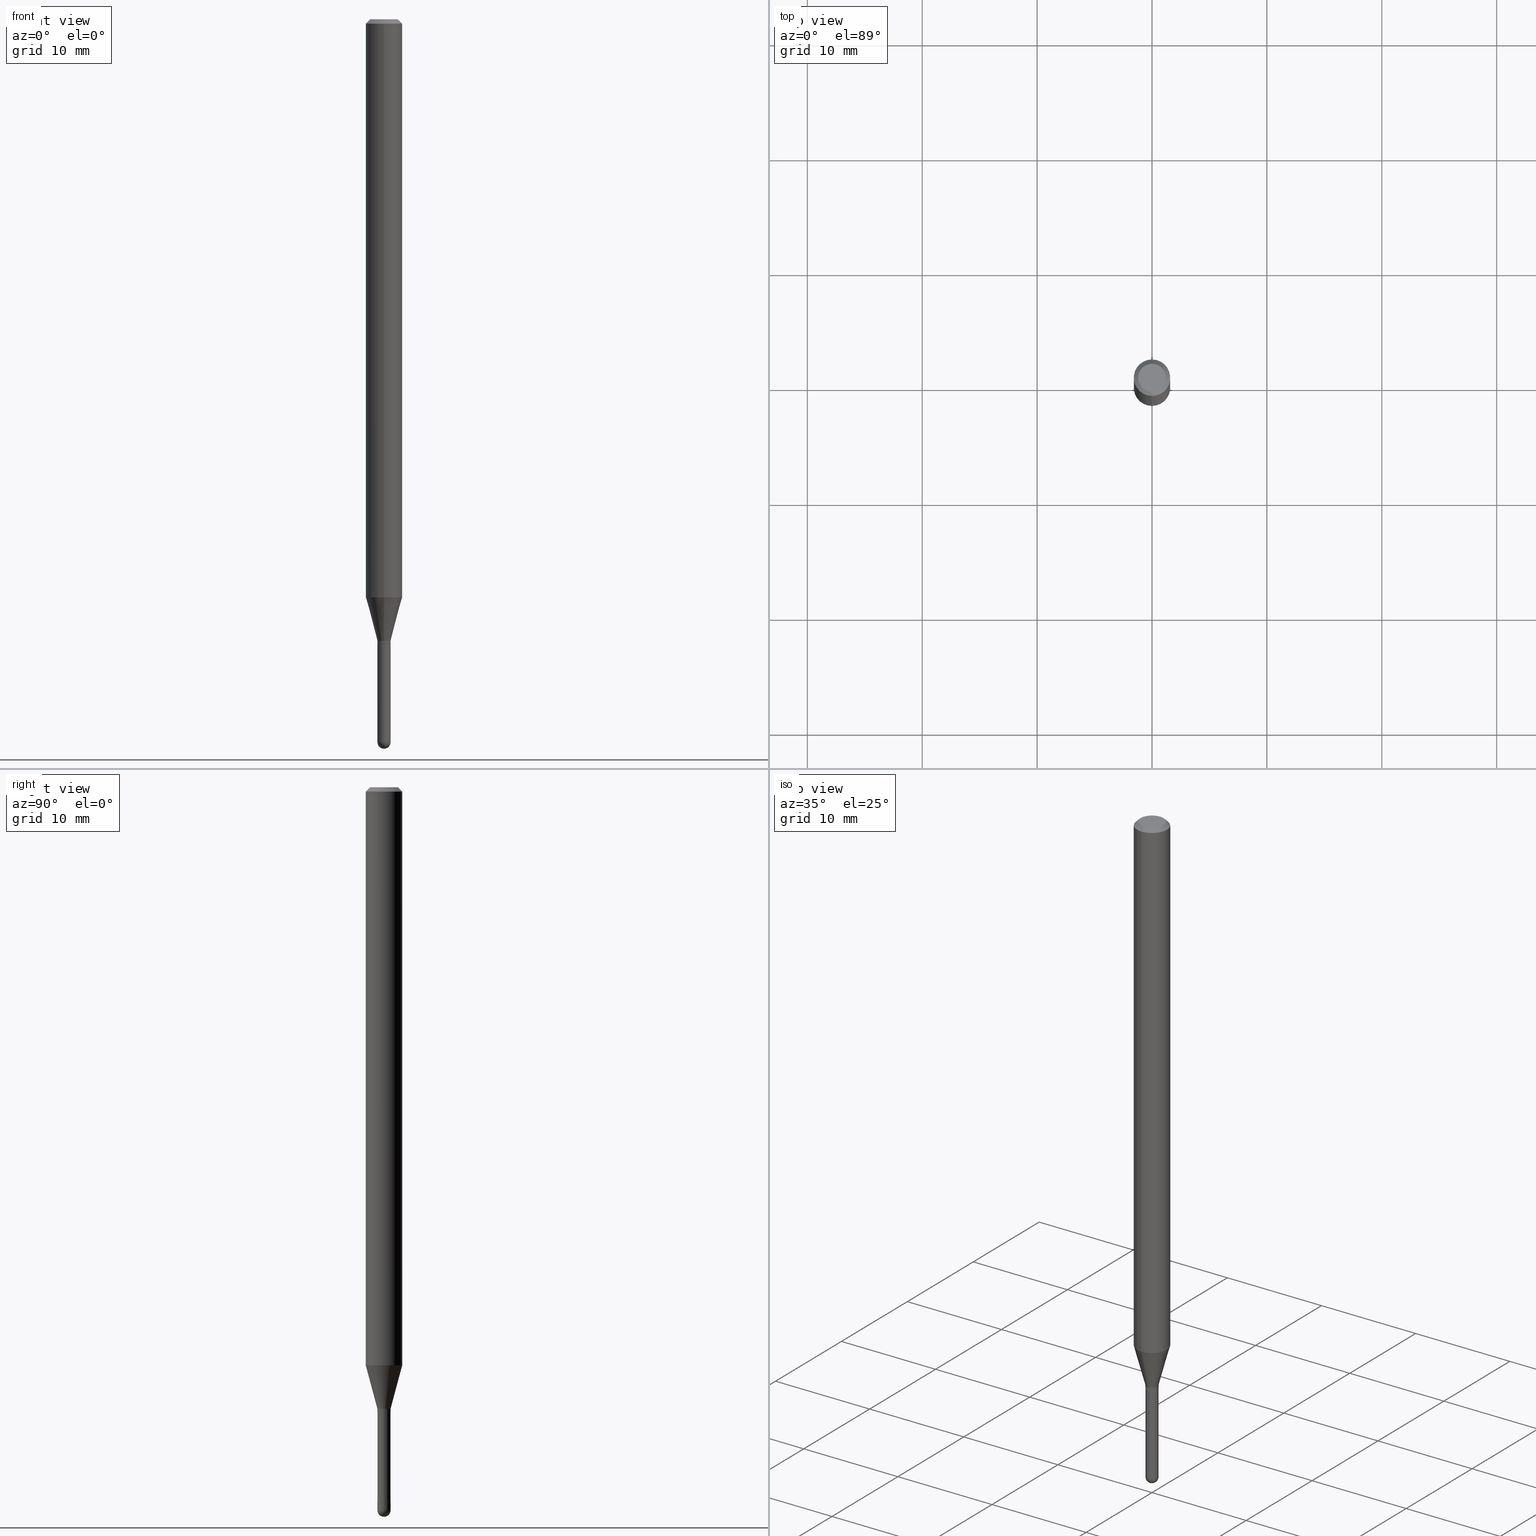
[diagram: canonical four-view strip — front | top / right | iso, engineering-drawing reading convention]
A machine part, canonical four-view strip (front | top / right | iso — engineering-drawing reading convention). The complete STEP part file that produces these views, byte-faithful:
ISO-10303-21;
HEADER;
FILE_DESCRIPTION (( 'STEP AP203' ),
    '1' );
FILE_NAME ('02755.STEP',
    '2024-03-07T21:15:14',
    ( '' ),
    ( '' ),
    'SwSTEP 2.0',
    'SolidWorks 2023',
    '' );
FILE_SCHEMA (( 'CONFIG_CONTROL_DESIGN' ));
ENDSEC;

DATA;
#1 = COORDINATED_UNIVERSAL_TIME_OFFSET ( 5, 0, .BEHIND. ) ;
#2 = CARTESIAN_POINT ( 'NONE',  ( -3.773273898774340269E-16, -0.04749999999999999362, -1.622950516242498850E-16 ) ) ;
#3 = CARTESIAN_POINT ( 'NONE',  ( 5.233200488847550650E-29, -7.471917218121399387E-15, -2.140000000000000124 ) ) ;
#4 = APPROVAL_ROLE ( '' ) ;
#5 = FACE_OUTER_BOUND ( 'NONE', #480, .T. ) ;
#6 = ORIENTED_EDGE ( 'NONE', *, *, #370, .F. ) ;
#7 = AXIS2_PLACEMENT_3D ( 'NONE', #168, #349, #257 ) ;
#8 = VERTEX_POINT ( 'NONE', #442 ) ;
#9 = APPROVAL_STATUS ( 'not_yet_approved' ) ;
#10 = EDGE_CURVE ( 'NONE', #491, #8, #89, .T. ) ;
#11 = ORIENTED_EDGE ( 'NONE', *, *, #189, .F. ) ;
#12 = AXIS2_PLACEMENT_3D ( 'NONE', #313, #161, #122 ) ;
#13 = VERTEX_POINT ( 'NONE', #134 ) ;
#14 = ORIENTED_EDGE ( 'NONE', *, *, #487, .T. ) ;
#15 = ORIENTED_EDGE ( 'NONE', *, *, #287, .F. ) ;
#16 = FACE_OUTER_BOUND ( 'NONE', #406, .T. ) ;
#17 = PRODUCT_DEFINITION_FORMATION_WITH_SPECIFIED_SOURCE ( 'ANY', '', #53, .NOT_KNOWN. ) ;
#18 = APPLICATION_CONTEXT ( 'configuration controlled 3d designs of mechanical parts and assemblies' ) ;
#19 = CARTESIAN_POINT ( 'NONE',  ( 4.364351673553919652E-16, 0.06249999999999995143, -0.01500000000000054588 ) ) ;
#20 = ORIENTED_EDGE ( 'NONE', *, *, #71, .F. ) ;
#21 = CARTESIAN_POINT ( 'NONE',  ( 6.056724843173022591E-29, -8.652900472281975573E-15, -2.477500000000000036 ) ) ;
#22 = CC_DESIGN_PERSON_AND_ORGANIZATION_ASSIGNMENT ( #432, #41, ( #53 ) ) ;
#23 = DIRECTION ( 'NONE',  ( -6.982962677686265922E-15, -1.000000000000000000, 3.483106191921935554E-15 ) ) ;
#24 = ORIENTED_EDGE ( 'NONE', *, *, #463, .F. ) ;
#25 = CYLINDRICAL_SURFACE ( 'NONE', #207, 0.06250000000000000000 ) ;
#26 = DIRECTION ( 'NONE',  ( -6.982962677686265922E-15, -1.000000000000000000, 3.483106191921935554E-15 ) ) ;
#27 = ORIENTED_EDGE ( 'NONE', *, *, #81, .F. ) ;
#28 = DIRECTION ( 'NONE',  ( -2.445468806185136597E-29, 3.491481338843145583E-15, 1.000000000000000000 ) ) ;
#29 = CIRCLE ( 'NONE', #490, 0.06250000000000000000 ) ;
#30 = CARTESIAN_POINT ( 'NONE',  ( 8.024493804947152112E-45, -1.145730104468003590E-30, -3.281436814657294675E-16 ) ) ;
#31 = CARTESIAN_POINT ( 'NONE',  ( 5.231977778452959369E-29, -7.470171443070435373E-15, -2.139500000000000401 ) ) ;
#32 = APPROVAL ( #9, 'UNSPECIFIED' ) ;
#33 = FACE_OUTER_BOUND ( 'NONE', #379, .T. ) ;
#34 = CARTESIAN_POINT ( 'NONE',  ( -0.02249999999999999917, -7.901085425508090322E-15, -2.140000000000000124 ) ) ;
#35 = CONICAL_SURFACE ( 'NONE', #117, 0.06250000000000000000, 0.7853981633974483900 ) ;
#36 = CC_DESIGN_APPROVAL ( #380, ( #446 ) ) ;
#37 = DATE_AND_TIME ( #78, #249 ) ;
#38 = VERTEX_POINT ( 'NONE', #365 ) ;
#39 = DIRECTION ( 'NONE',  ( -2.445468806185136597E-29, 3.491481338843145583E-15, 1.000000000000000000 ) ) ;
#40 = ORIENTED_EDGE ( 'NONE', *, *, #319, .T. ) ;
#41 = PERSON_AND_ORGANIZATION_ROLE ( 'design_owner' ) ;
#42 = DIRECTION ( 'NONE',  ( -4.851104656540964275E-15, -0.7071067811865500152, -0.7071067811865450192 ) ) ;
#43 = CC_DESIGN_PERSON_AND_ORGANIZATION_ASSIGNMENT ( #47, #511, ( #446 ) ) ;
#44 = ORIENTED_EDGE ( 'NONE', *, *, #430, .T. ) ;
#45 =( NAMED_UNIT ( * ) PLANE_ANGLE_UNIT ( ) SI_UNIT ( $, .RADIAN. ) );
#46 = VERTEX_POINT ( 'NONE', #172 ) ;
#47 = PERSON_AND_ORGANIZATION ( #346, #181 ) ;
#48 = CIRCLE ( 'NONE', #375, 0.02249999999999964875 ) ;
#49 = EDGE_CURVE ( 'NONE', #65, #225, #50, .T. ) ;
#50 = LINE ( 'NONE', #210, #96 ) ;
#51 = FACE_OUTER_BOUND ( 'NONE', #91, .T. ) ;
#52 = AXIS2_PLACEMENT_3D ( 'NONE', #144, #499, #492 ) ;
#53 = PRODUCT ( '02755', '02755', '', ( #163 ) ) ;
#54 = UNCERTAINTY_MEASURE_WITH_UNIT (LENGTH_MEASURE( 1.000000000000000082E-05 ), #402, 'distance_accuracy_value', 'NONE');
#55 = ORIENTED_EDGE ( 'NONE', *, *, #463, .T. ) ;
#56 = EDGE_LOOP ( 'NONE', ( #191, #97 ) ) ;
#57 = DIRECTION ( 'NONE',  ( -2.445468806185136597E-29, 3.491481338843145583E-15, 1.000000000000000000 ) ) ;
#58 = LINE ( 'NONE', #220, #240 ) ;
#59 = ORIENTED_EDGE ( 'NONE', *, *, #95, .F. ) ;
#60 = ADVANCED_FACE ( 'NONE', ( #51 ), #366, .F. ) ;
#61 = AXIS2_PLACEMENT_3D ( 'NONE', #115, #301, #344 ) ;
#62 = DIRECTION ( 'NONE',  ( -6.982962677686266711E-15, -1.000000000000000000, 0.000000000000000000 ) ) ;
#63 = VECTOR ( 'NONE', #502, 39.37007874015748143 ) ;
#64 = DIRECTION ( 'NONE',  ( 1.000000000000000000, -6.982962677686269866E-15, 0.000000000000000000 ) ) ;
#65 = VERTEX_POINT ( 'NONE', #94 ) ;
#66 = CC_DESIGN_DATE_AND_TIME_ASSIGNMENT ( #284, #87, ( #446 ) ) ;
#67 = FACE_OUTER_BOUND ( 'NONE', #434, .T. ) ;
#68 = DIRECTION ( 'NONE',  ( -6.982962677686266711E-15, -1.000000000000000000, 3.491550101925886841E-15 ) ) ;
#69 = VERTEX_POINT ( 'NONE', #447 ) ;
#70 = CARTESIAN_POINT ( 'NONE',  ( 5.233303245236192586E-29, -7.471770065124331886E-15, -2.140000000000000124 ) ) ;
#71 = EDGE_CURVE ( 'NONE', #234, #69, #450, .T. ) ;
#72 = DIRECTION ( 'NONE',  ( 4.937700262164548042E-15, 0.7071067811865451302, -0.7071067811865499042 ) ) ;
#73 = DIRECTION ( 'NONE',  ( -6.982962677686265922E-15, -1.000000000000000000, 0.000000000000000000 ) ) ;
#74 = VECTOR ( 'NONE', #414, 39.37007874015748143 ) ;
#75 = AXIS2_PLACEMENT_3D ( 'NONE', #183, #336, #493 ) ;
#76 = DIRECTION ( 'NONE',  ( -2.445420789181098238E-29, 3.491550101925886841E-15, 1.000000000000000000 ) ) ;
#77 = SPHERICAL_SURFACE ( 'NONE', #369, 0.02249999999999977712 ) ;
#78 = CALENDAR_DATE ( 2024, 7, 3 ) ;
#79 = DIRECTION ( 'NONE',  ( -1.000000000000000000, 6.982962677686265922E-15, -4.883557194083111780E-29 ) ) ;
#80 = COORDINATED_UNIVERSAL_TIME_OFFSET ( 5, 0, .BEHIND. ) ;
#81 = EDGE_CURVE ( 'NONE', #65, #8, #288, .T. ) ;
#82 = DIRECTION ( 'NONE',  ( -2.445420789181098238E-29, 3.491550101925886841E-15, 1.000000000000000000 ) ) ;
#83 = DATE_AND_TIME ( #435, #261 ) ;
#84 = DIRECTION ( 'NONE',  ( -2.445420789181098238E-29, 3.491550101925886841E-15, 1.000000000000000000 ) ) ;
#85 = CC_DESIGN_DATE_AND_TIME_ASSIGNMENT ( #37, #90, ( #422 ) ) ;
#86 = ORIENTED_EDGE ( 'NONE', *, *, #189, .T. ) ;
#87 = DATE_TIME_ROLE ( 'classification_date' ) ;
#88 = ADVANCED_FACE ( 'NONE', ( #338 ), #484, .T. ) ;
#89 = LINE ( 'NONE', #248, #342 ) ;
#90 = DATE_TIME_ROLE ( 'creation_date' ) ;
#91 = EDGE_LOOP ( 'NONE', ( #59, #417 ) ) ;
#92 = AXIS2_PLACEMENT_3D ( 'NONE', #386, #57, #424 ) ;
#93 = LOCAL_TIME ( 16, 15, 14.00000000000000000, #478 ) ;
#94 = CARTESIAN_POINT ( 'NONE',  ( 1.598721155460756608E-16, 0.02249999999999264741, -2.139500000000000401 ) ) ;
#95 = EDGE_CURVE ( 'NONE', #491, #46, #260, .T. ) ;
#96 = VECTOR ( 'NONE', #173, 39.37007874015748143 ) ;
#97 = ORIENTED_EDGE ( 'NONE', *, *, #408, .T. ) ;
#98 = AXIS2_PLACEMENT_3D ( 'NONE', #433, #82, #239 ) ;
#99 = ORIENTED_EDGE ( 'NONE', *, *, #227, .T. ) ;
#100 = DIRECTION ( 'NONE',  ( -2.445420789181098238E-29, 3.491550101925886841E-15, 1.000000000000000000 ) ) ;
#101 = CARTESIAN_POINT ( 'NONE',  ( 8.024493804947152112E-45, -1.145730104468003590E-30, -3.281436814657294675E-16 ) ) ;
#102 = ORIENTED_EDGE ( 'NONE', *, *, #400, .F. ) ;
#103 = DIRECTION ( 'NONE',  ( -2.445420789181098238E-29, 3.491550101925886841E-15, 1.000000000000000000 ) ) ;
#104 = CC_DESIGN_PERSON_AND_ORGANIZATION_ASSIGNMENT ( #393, #160, ( #17 ) ) ;
#105 = CARTESIAN_POINT ( 'NONE',  ( 3.668131183771727494E-31, -5.237325152888944203E-17, -0.01500000000000032904 ) ) ;
#106 = ORIENTED_EDGE ( 'NONE', *, *, #167, .T. ) ;
#107 = AXIS2_PLACEMENT_3D ( 'NONE', #259, #464, #334 ) ;
#108 = DIRECTION ( 'NONE',  ( -6.982962677686265133E-15, -1.000000000000000000, 0.000000000000000000 ) ) ;
#109 = LINE ( 'NONE', #265, #63 ) ;
#110 = VERTEX_POINT ( 'NONE', #311 ) ;
#111 = ADVANCED_FACE ( 'NONE', ( #269 ), #294, .T. ) ;
#112 = DIRECTION ( 'NONE',  ( 1.000000000000000000, -6.982962677686265922E-15, 4.883557194083112340E-29 ) ) ;
#113 = LINE ( 'NONE', #461, #485 ) ;
#114 = PLANE ( 'NONE',  #179 ) ;
#115 = CARTESIAN_POINT ( 'NONE',  ( 4.843688895711374227E-29, -6.915776021999746285E-15, -1.980717967697243731 ) ) ;
#116 = DIRECTION ( 'NONE',  ( -2.445420789181098238E-29, 3.491550101925886841E-15, 1.000000000000000000 ) ) ;
#117 = AXIS2_PLACEMENT_3D ( 'NONE', #267, #297, #299 ) ;
#118 = AXIS2_PLACEMENT_3D ( 'NONE', #243, #171, #272 ) ;
#119 = DATE_AND_TIME ( #320, #354 ) ;
#120 = DIRECTION ( 'NONE',  ( 6.982962677686265922E-15, 1.000000000000000000, 0.000000000000000000 ) ) ;
#121 = ADVANCED_FACE ( 'NONE', ( #381 ), #418, .T. ) ;
#122 = DIRECTION ( 'NONE',  ( 6.982962677686265922E-15, 1.000000000000000000, -3.491550101925886841E-15 ) ) ;
#123 = APPROVAL_STATUS ( 'not_yet_approved' ) ;
#124 = APPROVAL ( #236, 'UNSPECIFIED' ) ;
#125 = CARTESIAN_POINT ( 'NONE',  ( -4.287811248607203282E-16, -0.06250000000000005551, -0.01500000000000011047 ) ) ;
#126 = AXIS2_PLACEMENT_3D ( 'NONE', #21, #112, #412 ) ;
#127 = VECTOR ( 'NONE', #84, 39.37007874015748143 ) ;
#128 = ORIENTED_EDGE ( 'NONE', *, *, #327, .F. ) ;
#129 = APPLICATION_PROTOCOL_DEFINITION ( 'international standard', 'config_control_design', 1994, #469 ) ;
#130 = ADVANCED_FACE ( 'NONE', ( #16 ), #35, .T. ) ;
#131 = EDGE_LOOP ( 'NONE', ( #440, #255, #302, #170 ) ) ;
#132 =( NAMED_UNIT ( * ) SI_UNIT ( $, .STERADIAN. ) SOLID_ANGLE_UNIT ( ) );
#133 = VERTEX_POINT ( 'NONE', #226 ) ;
#134 = CARTESIAN_POINT ( 'NONE',  ( 4.440892098501114269E-16, 0.06249999999999995143, -0.01500000000000054588 ) ) ;
#135 = AXIS2_PLACEMENT_3D ( 'NONE', #452, #100, #73 ) ;
#136 = CC_DESIGN_APPROVAL ( #32, ( #422 ) ) ;
#137 = ADVANCED_FACE ( 'NONE', ( #303 ), #114, .F. ) ;
#138 = CIRCLE ( 'NONE', #426, 0.02249999999999999917 ) ;
#139 = ORIENTED_EDGE ( 'NONE', *, *, #279, .F. ) ;
#140 = CIRCLE ( 'NONE', #305, 0.02199999999999999872 ) ;
#141 = DIRECTION ( 'NONE',  ( -1.807323732225331717E-15, -0.2588190451025184080, 0.9659258262890689783 ) ) ;
#142 = EDGE_CURVE ( 'NONE', #371, #143, #230, .T. ) ;
#143 = VERTEX_POINT ( 'NONE', #256 ) ;
#144 = CARTESIAN_POINT ( 'NONE',  ( 0.000000000000000000, 0.000000000000000000, 0.000000000000000000 ) ) ;
#145 = CARTESIAN_POINT ( 'NONE',  ( 4.843688895711374227E-29, -6.915776021999746285E-15, -1.980717967697243731 ) ) ;
#146 = EDGE_LOOP ( 'NONE', ( #229, #285, #277, #360 ) ) ;
#147 = DIRECTION ( 'NONE',  ( -2.445468806185136877E-29, 3.491481338843145188E-15, 1.000000000000000000 ) ) ;
#148 = ORIENTED_EDGE ( 'NONE', *, *, #287, .T. ) ;
#149 = CIRCLE ( 'NONE', #436, 0.02249999999999999570 ) ;
#150 = CIRCLE ( 'NONE', #376, 0.02249999999999999570 ) ;
#151 = LINE ( 'NONE', #196, #74 ) ;
#152 = DIRECTION ( 'NONE',  ( 1.000000000000000000, -6.982962677686269866E-15, 0.000000000000000000 ) ) ;
#153 = CARTESIAN_POINT ( 'NONE',  ( 5.231977778452959369E-29, -7.470171443070435373E-15, -2.139500000000000401 ) ) ;
#154 = DIRECTION ( 'NONE',  ( -2.445420789181098238E-29, 3.491550101925886841E-15, 1.000000000000000000 ) ) ;
#155 = PLANE ( 'NONE',  #12 ) ;
#156 = DIRECTION ( 'NONE',  ( -2.445468806185136597E-29, 3.491481338843145583E-15, 1.000000000000000000 ) ) ;
#157 = CARTESIAN_POINT ( 'NONE',  ( 5.233303245236192586E-29, -7.471770065124331886E-15, -2.140000000000000124 ) ) ;
#158 = EDGE_CURVE ( 'NONE', #397, #242, #151, .T. ) ;
#159 = CC_DESIGN_APPROVAL ( #124, ( #17 ) ) ;
#160 = PERSON_AND_ORGANIZATION_ROLE ( 'creator' ) ;
#161 = DIRECTION ( 'NONE',  ( 2.445420789181097678E-29, -3.491550101925886841E-15, -1.000000000000000000 ) ) ;
#162 = CC_DESIGN_PERSON_AND_ORGANIZATION_ASSIGNMENT ( #361, #166, ( #422 ) ) ;
#163 = MECHANICAL_CONTEXT ( 'NONE', #469, 'mechanical' ) ;
#164 = CARTESIAN_POINT ( 'NONE',  ( -1.571166602479404241E-16, -0.02249999999999992284, 7.855987729333218473E-17 ) ) ;
#165 = ORIENTED_EDGE ( 'NONE', *, *, #158, .F. ) ;
#166 = PERSON_AND_ORGANIZATION_ROLE ( 'creator' ) ;
#167 = EDGE_CURVE ( 'NONE', #234, #110, #192, .T. ) ;
#168 = CARTESIAN_POINT ( 'NONE',  ( 5.208746280955738477E-29, -7.437001717102136463E-15, -2.129999999999999449 ) ) ;
#169 = CIRCLE ( 'NONE', #75, 0.02249999999999964875 ) ;
#170 = ORIENTED_EDGE ( 'NONE', *, *, #487, .F. ) ;
#171 = DIRECTION ( 'NONE',  ( 0.000000000000000000, 0.000000000000000000, 1.000000000000000000 ) ) ;
#172 = CARTESIAN_POINT ( 'NONE',  ( 1.580957587066752608E-16, 0.02199999999999252900, -2.139999999999999680 ) ) ;
#173 = DIRECTION ( 'NONE',  ( -2.445420789181098238E-29, 3.491550101925886841E-15, 1.000000000000000000 ) ) ;
#174 = ADVANCED_FACE ( 'NONE', ( #67 ), #194, .T. ) ;
#175 = AXIS2_PLACEMENT_3D ( 'NONE', #252, #212, #458 ) ;
#176 = CIRCLE ( 'NONE', #295, 0.06250000000000000000 ) ;
#177 = DIMENSIONAL_EXPONENTS ( 1.000000000000000000, 0.000000000000000000, 0.000000000000000000, 0.000000000000000000, 0.000000000000000000, 0.000000000000000000, 0.000000000000000000 ) ;
#178 = EDGE_CURVE ( 'NONE', #451, #38, #232, .T. ) ;
#179 = AXIS2_PLACEMENT_3D ( 'NONE', #455, #223, #466 ) ;
#180 = ORIENTED_EDGE ( 'NONE', *, *, #10, .T. ) ;
#181 = ORGANIZATION ( 'UNSPECIFIED', 'UNSPECIFIED', '' ) ;
#182 = DIRECTION ( 'NONE',  ( -6.982962677686265922E-15, -1.000000000000000000, 3.491550101925886447E-15 ) ) ;
#183 = CARTESIAN_POINT ( 'NONE',  ( 5.208746280955738477E-29, -7.437001717102136463E-15, -2.129999999999999449 ) ) ;
#184 = ORIENTED_EDGE ( 'NONE', *, *, #471, .F. ) ;
#185 = DIRECTION ( 'NONE',  ( 1.000000000000000000, -6.982962677686269077E-15, 0.000000000000000000 ) ) ;
#186 = LINE ( 'NONE', #19, #364 ) ;
#187 = ORIENTED_EDGE ( 'NONE', *, *, #279, .T. ) ;
#188 = CARTESIAN_POINT ( 'NONE',  ( 0.000000000000000000, 0.000000000000000000, 0.000000000000000000 ) ) ;
#189 = EDGE_CURVE ( 'NONE', #143, #242, #138, .T. ) ;
#190 = CARTESIAN_POINT ( 'NONE',  ( -0.02249999999999999570, -7.901085425508090322E-15, -2.477500000000000036 ) ) ;
#191 = ORIENTED_EDGE ( 'NONE', *, *, #215, .T. ) ;
#192 = CIRCLE ( 'NONE', #126, 0.02249999999999977712 ) ;
#193 = CIRCLE ( 'NONE', #479, 0.02249999999999999570 ) ;
#194 = CYLINDRICAL_SURFACE ( 'NONE', #92, 0.02249999999999999917 ) ;
#195 = CYLINDRICAL_SURFACE ( 'NONE', #437, 0.02249999999999992284 ) ;
#196 = CARTESIAN_POINT ( 'NONE',  ( -0.02249999999999999917, 1.598721155460225359E-16, -1.106760395307353780E-30 ) ) ;
#197 = LINE ( 'NONE', #347, #501 ) ;
#198 = ORIENTED_EDGE ( 'NONE', *, *, #253, .F. ) ;
#199 = CARTESIAN_POINT ( 'NONE',  ( 6.058648967323676636E-29, -8.650145016983893338E-15, -2.477500000000000036 ) ) ;
#200 = CARTESIAN_POINT ( 'NONE',  ( 5.208746280955738477E-29, -7.437001717102136463E-15, -2.129999999999999449 ) ) ;
#201 = LINE ( 'NONE', #125, #219 ) ;
#202 = ADVANCED_FACE ( 'NONE', ( #345 ), #304, .T. ) ;
#203 = EDGE_LOOP ( 'NONE', ( #246, #328, #40, #258 ) ) ;
#204 = SHAPE_DEFINITION_REPRESENTATION ( #425, #377 ) ;
#205 = DIRECTION ( 'NONE',  ( 6.982962677686265922E-15, 1.000000000000000000, 0.000000000000000000 ) ) ;
#206 = ORIENTED_EDGE ( 'NONE', *, *, #400, .T. ) ;
#207 = AXIS2_PLACEMENT_3D ( 'NONE', #188, #390, #182 ) ;
#208 = AXIS2_PLACEMENT_3D ( 'NONE', #105, #231, #389 ) ;
#209 = ORIENTED_EDGE ( 'NONE', *, *, #142, .F. ) ;
#210 = CARTESIAN_POINT ( 'NONE',  ( 1.598721155460219689E-16, 0.02249999999999992284, -7.855987729333218473E-17 ) ) ;
#211 = ADVANCED_FACE ( 'NONE', ( #495 ), #25, .T. ) ;
#212 = DIRECTION ( 'NONE',  ( -1.000000000000000000, 7.105427357601001070E-15, -4.926315508542082329E-29 ) ) ;
#213 = CIRCLE ( 'NONE', #500, 0.02249999999999999570 ) ;
#214 = CONICAL_SURFACE ( 'NONE', #7, 0.02249999999999964875, 0.2617993877991505181 ) ;
#215 = EDGE_CURVE ( 'NONE', #133, #273, #488, .T. ) ;
#216 = ORIENTED_EDGE ( 'NONE', *, *, #95, .T. ) ;
#217 = ORIENTED_EDGE ( 'NONE', *, *, #373, .F. ) ;
#218 = CARTESIAN_POINT ( 'NONE',  ( 5.233200488847549529E-29, -7.471917218121397809E-15, -2.139999999999999680 ) ) ;
#219 = VECTOR ( 'NONE', #42, 39.37007874015748143 ) ;
#220 = CARTESIAN_POINT ( 'NONE',  ( 1.563194018672743185E-16, 0.02199999999999252900, -2.139999999999999680 ) ) ;
#221 = ORIENTED_EDGE ( 'NONE', *, *, #411, .F. ) ;
#222 =( GEOMETRIC_REPRESENTATION_CONTEXT ( 3 ) GLOBAL_UNCERTAINTY_ASSIGNED_CONTEXT ( ( #54 ) ) GLOBAL_UNIT_ASSIGNED_CONTEXT ( ( #402, #45, #132 ) ) REPRESENTATION_CONTEXT ( 'NONE', 'WORKASPACE' ) );
#223 = DIRECTION ( 'NONE',  ( 2.438088387897960049E-29, -3.491481338843145188E-15, -1.000000000000000000 ) ) ;
#224 = DIRECTION ( 'NONE',  ( 1.839019923739601893E-15, 0.2588190451025252359, 0.9659258262890670910 ) ) ;
#225 = VERTEX_POINT ( 'NONE', #472 ) ;
#226 = CARTESIAN_POINT ( 'NONE',  ( 3.840629472727447874E-16, 0.04749999999999999362, -4.939923113072091241E-16 ) ) ;
#227 = EDGE_CURVE ( 'NONE', #451, #225, #48, .T. ) ;
#228 = DIRECTION ( 'NONE',  ( 5.024295867790934632E-15, 0.7071067811869542474, 0.7071067811861405650 ) ) ;
#229 = ORIENTED_EDGE ( 'NONE', *, *, #356, .T. ) ;
#230 = LINE ( 'NONE', #308, #363 ) ;
#231 = DIRECTION ( 'NONE',  ( 2.445420789181098238E-29, -3.491550101925886841E-15, -1.000000000000000000 ) ) ;
#232 = LINE ( 'NONE', #374, #368 ) ;
#233 = CARTESIAN_POINT ( 'NONE',  ( -4.364351673553912750E-16, -0.06250000000000005551, -0.01500000000000011047 ) ) ;
#234 = VERTEX_POINT ( 'NONE', #317 ) ;
#235 = DIRECTION ( 'NONE',  ( 1.000000000000000000, -6.982962677686269077E-15, 0.000000000000000000 ) ) ;
#236 = APPROVAL_STATUS ( 'not_yet_approved' ) ;
#237 = CYLINDRICAL_SURFACE ( 'NONE', #445, 0.06250000000000000000 ) ;
#238 = LENGTH_MEASURE_WITH_UNIT ( LENGTH_MEASURE( 0.02539999999999999897 ), #428 );
#239 = DIRECTION ( 'NONE',  ( -6.982962677686265133E-15, -1.000000000000000000, 3.491550101925886841E-15 ) ) ;
#240 = VECTOR ( 'NONE', #228, 39.37007874015748854 ) ;
#241 = MANIFOLD_SOLID_BREP ( 'Body-Move/Copy2[2]', #280 ) ;
#242 = VERTEX_POINT ( 'NONE', #34 ) ;
#243 = CARTESIAN_POINT ( 'NONE',  ( 0.000000000000000000, 0.000000000000000000, 0.000000000000000000 ) ) ;
#244 = DIRECTION ( 'NONE',  ( -2.445468806185136597E-29, 3.491481338843145583E-15, 1.000000000000000000 ) ) ;
#245 = CC_DESIGN_PERSON_AND_ORGANIZATION_ASSIGNMENT ( #441, #351, ( #17 ) ) ;
#246 = ORIENTED_EDGE ( 'NONE', *, *, #49, .F. ) ;
#247 = COORDINATED_UNIVERSAL_TIME_OFFSET ( 5, 0, .BEHIND. ) ;
#248 = CARTESIAN_POINT ( 'NONE',  ( -1.536251789090455247E-16, -0.02200000000000746844, -2.139999999999999680 ) ) ;
#249 = LOCAL_TIME ( 16, 15, 14.00000000000000000, #326 ) ;
#250 = ADVANCED_FACE ( 'NONE', ( #33 ), #237, .T. ) ;
#251 = MANIFOLD_SOLID_BREP ( 'Body-Move/Copy2[1]', #409 ) ;
#252 = CARTESIAN_POINT ( 'NONE',  ( 6.056724843173022591E-29, -8.652900472281975573E-15, -2.477500000000000036 ) ) ;
#253 = EDGE_CURVE ( 'NONE', #273, #407, #201, .T. ) ;
#254 = AXIS2_PLACEMENT_3D ( 'NONE', #101, #504, #68 ) ;
#255 = ORIENTED_EDGE ( 'NONE', *, *, #253, .T. ) ;
#256 = CARTESIAN_POINT ( 'NONE',  ( 0.02249999999999999917, -7.628886725372273518E-15, -2.140000000000000124 ) ) ;
#257 = DIRECTION ( 'NONE',  ( -6.982962677686266711E-15, -1.000000000000000000, 0.000000000000000000 ) ) ;
#258 = ORIENTED_EDGE ( 'NONE', *, *, #496, .F. ) ;
#259 = CARTESIAN_POINT ( 'NONE',  ( 5.233200488847549529E-29, -7.471917218121397809E-15, -2.139999999999999680 ) ) ;
#260 = CIRCLE ( 'NONE', #107, 0.02199999999999999872 ) ;
#261 = LOCAL_TIME ( 16, 15, 14.00000000000000000, #247 ) ;
#262 = EDGE_LOOP ( 'NONE', ( #216, #449, #340, #307 ) ) ;
#263 = ADVANCED_FACE ( 'NONE', ( #355 ), #429, .T. ) ;
#264 = CARTESIAN_POINT ( 'NONE',  ( 5.208746280955738477E-29, -7.437001717102136463E-15, -2.129999999999999449 ) ) ;
#265 = CARTESIAN_POINT ( 'NONE',  ( -4.364351673553916201E-16, -0.06250000000000000000, 2.182218813703679029E-16 ) ) ;
#266 = ORIENTED_EDGE ( 'NONE', *, *, #178, .F. ) ;
#267 = CARTESIAN_POINT ( 'NONE',  ( 3.668131183771727494E-31, -5.237325152888944203E-17, -0.01500000000000032904 ) ) ;
#268 = CARTESIAN_POINT ( 'NONE',  ( 3.668131183771727494E-31, -5.237325152888944203E-17, -0.01500000000000032904 ) ) ;
#269 = FACE_OUTER_BOUND ( 'NONE', #337, .T. ) ;
#270 = ADVANCED_FACE ( 'NONE', ( #392 ), #155, .F. ) ;
#271 = CARTESIAN_POINT ( 'NONE',  ( -1.536251789090455247E-16, -0.02200000000000746844, -2.139999999999999680 ) ) ;
#272 = DIRECTION ( 'NONE',  ( 1.000000000000000000, 0.000000000000000000, 0.000000000000000000 ) ) ;
#273 = VERTEX_POINT ( 'NONE', #2 ) ;
#274 = DIRECTION ( 'NONE',  ( -2.445468806185136597E-29, 3.491481338843145583E-15, 1.000000000000000000 ) ) ;
#275 = APPLICATION_PROTOCOL_DEFINITION ( 'international standard', 'config_control_design', 1994, #18 ) ;
#276 = CYLINDRICAL_SURFACE ( 'NONE', #98, 0.02249999999999992284 ) ;
#277 = ORIENTED_EDGE ( 'NONE', *, *, #227, .F. ) ;
#278 = APPROVAL_ROLE ( '' ) ;
#279 = EDGE_CURVE ( 'NONE', #110, #397, #149, .T. ) ;
#280 = CLOSED_SHELL ( 'NONE', ( #310, #202, #505, #250, #335, #88, #211, #130, #270, #60, #111, #383 ) ) ;
#281 = DIRECTION ( 'NONE',  ( -1.000000000000000000, 6.982962677686265922E-15, -4.883557194083111780E-29 ) ) ;
#282 = CIRCLE ( 'NONE', #61, 0.06250000000000000000 ) ;
#283 = ORIENTED_EDGE ( 'NONE', *, *, #471, .T. ) ;
#284 = DATE_AND_TIME ( #473, #353 ) ;
#285 = ORIENTED_EDGE ( 'NONE', *, *, #49, .T. ) ;
#286 = DATE_AND_TIME ( #481, #93 ) ;
#287 = EDGE_CURVE ( 'NONE', #371, #110, #213, .T. ) ;
#288 = CIRCLE ( 'NONE', #352, 0.02250000000000019693 ) ;
#289 = APPROVAL_PERSON_ORGANIZATION ( #314, #32, #4 ) ;
#290 = DIRECTION ( 'NONE',  ( -2.445420789181097678E-29, 3.491550101925886841E-15, 1.000000000000000000 ) ) ;
#291 = ADVANCED_FACE ( 'NONE', ( #438 ), #77, .T. ) ;
#292 = EDGE_LOOP ( 'NONE', ( #165, #333, #494, #486, #128 ) ) ;
#293 = PRODUCT_RELATED_PRODUCT_CATEGORY ( 'detail', '', ( #53 ) ) ;
#294 = CONICAL_SURFACE ( 'NONE', #509, 0.02199999999999999872, 0.7853981633980202659 ) ;
#295 = AXIS2_PLACEMENT_3D ( 'NONE', #453, #312, #26 ) ;
#296 = EDGE_LOOP ( 'NONE', ( #385, #401, #55, #184 ) ) ;
#297 = DIRECTION ( 'NONE',  ( 2.445420789181098238E-29, -3.491550101925886841E-15, -1.000000000000000000 ) ) ;
#298 = ORIENTED_EDGE ( 'NONE', *, *, #496, .T. ) ;
#299 = DIRECTION ( 'NONE',  ( 6.982962677686265922E-15, 1.000000000000000000, -3.483106191921935554E-15 ) ) ;
#300 = EDGE_CURVE ( 'NONE', #46, #491, #140, .T. ) ;
#301 = DIRECTION ( 'NONE',  ( -2.445420789181098238E-29, 3.491550101925886841E-15, 1.000000000000000000 ) ) ;
#302 = ORIENTED_EDGE ( 'NONE', *, *, #373, .T. ) ;
#303 = FACE_OUTER_BOUND ( 'NONE', #454, .T. ) ;
#304 = CONICAL_SURFACE ( 'NONE', #135, 0.02199999999999999872, 0.7853981633980202659 ) ;
#305 = AXIS2_PLACEMENT_3D ( 'NONE', #396, #362, #350 ) ;
#306 = CARTESIAN_POINT ( 'NONE',  ( 0.02249999999999999570, -8.218074201302054244E-15, -2.477500000000000036 ) ) ;
#307 = ORIENTED_EDGE ( 'NONE', *, *, #10, .F. ) ;
#308 = CARTESIAN_POINT ( 'NONE',  ( 0.02249999999999999917, -1.571166602479409911E-16, 1.097139774554085483E-30 ) ) ;
#309 = CARTESIAN_POINT ( 'NONE',  ( 6.058648967323676636E-29, -8.650145016983893338E-15, -2.477500000000000036 ) ) ;
#310 = ADVANCED_FACE ( 'NONE', ( #474 ), #276, .T. ) ;
#311 = CARTESIAN_POINT ( 'NONE',  ( 1.571166602480007720E-16, 0.02249999999999123187, -2.477500000000000036 ) ) ;
#312 = DIRECTION ( 'NONE',  ( -2.445420789181098238E-29, 3.491550101925886841E-15, 1.000000000000000000 ) ) ;
#313 = CARTESIAN_POINT ( 'NONE',  ( 3.316907271900976096E-16, 0.04749999999999999362, -3.299204705743443410E-16 ) ) ;
#314 = PERSON_AND_ORGANIZATION ( #346, #181 ) ;
#315 = AXIS2_PLACEMENT_3D ( 'NONE', #264, #503, #62 ) ;
#316 = APPROVAL_PERSON_ORGANIZATION ( #404, #124, #323 ) ;
#317 = CARTESIAN_POINT ( 'NONE',  ( 6.112709953387515030E-29, -8.730081074756904482E-15, -2.499999999999999556 ) ) ;
#318 = DIRECTION ( 'NONE',  ( -2.445420789181098238E-29, 3.491550101925886841E-15, 1.000000000000000000 ) ) ;
#319 = EDGE_CURVE ( 'NONE', #8, #451, #359, .T. ) ;
#320 = CALENDAR_DATE ( 2024, 7, 3 ) ;
#321 = DIRECTION ( 'NONE',  ( 1.000000000000000000, -6.982962677686269866E-15, 0.000000000000000000 ) ) ;
#322 = DIRECTION ( 'NONE',  ( -6.982962677686265922E-15, -1.000000000000000000, 3.491550101925886841E-15 ) ) ;
#323 = APPROVAL_ROLE ( '' ) ;
#324 = CIRCLE ( 'NONE', #388, 0.06250000000000000000 ) ;
#325 = ORIENTED_EDGE ( 'NONE', *, *, #158, .T. ) ;
#326 = COORDINATED_UNIVERSAL_TIME_OFFSET ( 5, 0, .BEHIND. ) ;
#327 = EDGE_CURVE ( 'NONE', #242, #143, #427, .T. ) ;
#328 = ORIENTED_EDGE ( 'NONE', *, *, #81, .T. ) ;
#329 = ORIENTED_EDGE ( 'NONE', *, *, #448, .F. ) ;
#330 = AXIS2_PLACEMENT_3D ( 'NONE', #30, #341, #348 ) ;
#331 = CC_DESIGN_SECURITY_CLASSIFICATION ( #446, ( #17 ) ) ;
#332 = ORIENTED_EDGE ( 'NONE', *, *, #178, .T. ) ;
#333 = ORIENTED_EDGE ( 'NONE', *, *, #394, .T. ) ;
#334 = DIRECTION ( 'NONE',  ( -6.982962677686265922E-15, -1.000000000000000000, 0.000000000000000000 ) ) ;
#335 = ADVANCED_FACE ( 'NONE', ( #5 ), #214, .T. ) ;
#336 = DIRECTION ( 'NONE',  ( -2.445420789181098238E-29, 3.491550101925886841E-15, 1.000000000000000000 ) ) ;
#337 = EDGE_LOOP ( 'NONE', ( #329, #483, #180, #27 ) ) ;
#338 = FACE_OUTER_BOUND ( 'NONE', #477, .T. ) ;
#339 = DIRECTION ( 'NONE',  ( -6.982962677686265133E-15, -1.000000000000000000, 3.491550101925886841E-15 ) ) ;
#340 = ORIENTED_EDGE ( 'NONE', *, *, #356, .F. ) ;
#341 = DIRECTION ( 'NONE',  ( -2.445420789181098238E-29, 3.491550101925886841E-15, 1.000000000000000000 ) ) ;
#342 = VECTOR ( 'NONE', #403, 39.37007874015748854 ) ;
#343 = CIRCLE ( 'NONE', #254, 0.04749999999999999362 ) ;
#344 = DIRECTION ( 'NONE',  ( -6.982962677686265922E-15, -1.000000000000000000, 4.370956789862821150E-15 ) ) ;
#345 = FACE_OUTER_BOUND ( 'NONE', #262, .T. ) ;
#346 = PERSON ( 'UNSPECIFIED', 'UNSPECIFIED', 'UNSPECIFIED', ('UNSPECIFIED'), ('UNSPECIFIED'), ('UNSPECIFIED') ) ;
#347 = CARTESIAN_POINT ( 'NONE',  ( 1.598721155460720862E-16, 0.02249999999999221373, -2.129999999999999449 ) ) ;
#348 = DIRECTION ( 'NONE',  ( -6.982962677686266711E-15, -1.000000000000000000, 3.491550101925886841E-15 ) ) ;
#349 = DIRECTION ( 'NONE',  ( -2.445420789181098238E-29, 3.491550101925886841E-15, 1.000000000000000000 ) ) ;
#350 = DIRECTION ( 'NONE',  ( -6.982962677686265922E-15, -1.000000000000000000, 0.000000000000000000 ) ) ;
#351 = PERSON_AND_ORGANIZATION_ROLE ( 'design_supplier' ) ;
#352 = AXIS2_PLACEMENT_3D ( 'NONE', #153, #421, #108 ) ;
#353 = LOCAL_TIME ( 16, 15, 14.00000000000000000, #1 ) ;
#354 = LOCAL_TIME ( 16, 15, 14.00000000000000000, #80 ) ;
#355 = FACE_OUTER_BOUND ( 'NONE', #367, .T. ) ;
#356 = EDGE_CURVE ( 'NONE', #8, #65, #510, .T. ) ;
#357 = SECURITY_CLASSIFICATION_LEVEL ( 'unclassified' ) ;
#358 = EDGE_LOOP ( 'NONE', ( #20, #106, #15, #6 ) ) ;
#359 = LINE ( 'NONE', #164, #127 ) ;
#360 = ORIENTED_EDGE ( 'NONE', *, *, #319, .F. ) ;
#361 = PERSON_AND_ORGANIZATION ( #346, #181 ) ;
#362 = DIRECTION ( 'NONE',  ( -2.445420789181098238E-29, 3.491550101925886841E-15, 1.000000000000000000 ) ) ;
#363 = VECTOR ( 'NONE', #147, 39.37007874015748143 ) ;
#364 = VECTOR ( 'NONE', #72, 39.37007874015748143 ) ;
#365 = CARTESIAN_POINT ( 'NONE',  ( -4.364351673553434010E-16, -0.06250000000000693889, -1.980717967697243287 ) ) ;
#366 = PLANE ( 'NONE',  #387 ) ;
#367 = EDGE_LOOP ( 'NONE', ( #444, #372, #482, #139 ) ) ;
#368 = VECTOR ( 'NONE', #141, 39.37007874015748854 ) ;
#369 = AXIS2_PLACEMENT_3D ( 'NONE', #506, #79, #205 ) ;
#370 = EDGE_CURVE ( 'NONE', #69, #371, #193, .T. ) ;
#371 = VERTEX_POINT ( 'NONE', #306 ) ;
#372 = ORIENTED_EDGE ( 'NONE', *, *, #71, .T. ) ;
#373 = EDGE_CURVE ( 'NONE', #407, #13, #176, .T. ) ;
#374 = CARTESIAN_POINT ( 'NONE',  ( -1.571166602478864611E-16, -0.02250000000000708378, -2.129999999999999449 ) ) ;
#375 = AXIS2_PLACEMENT_3D ( 'NONE', #200, #318, #476 ) ;
#376 = AXIS2_PLACEMENT_3D ( 'NONE', #309, #156, #152 ) ;
#377 = ADVANCED_BREP_SHAPE_REPRESENTATION ( '02755', ( #251, #241, #118 ), #222 ) ;
#378 = CARTESIAN_POINT ( 'NONE',  ( 0.000000000000000000, 0.000000000000000000, 0.000000000000000000 ) ) ;
#379 = EDGE_LOOP ( 'NONE', ( #420, #44, #217, #24 ) ) ;
#380 = APPROVAL ( #123, 'UNSPECIFIED' ) ;
#381 = FACE_OUTER_BOUND ( 'NONE', #292, .T. ) ;
#382 = DIRECTION ( 'NONE',  ( -6.982962677686265922E-15, -1.000000000000000000, 0.000000000000000000 ) ) ;
#383 = ADVANCED_FACE ( 'NONE', ( #507 ), #195, .T. ) ;
#384 = CARTESIAN_POINT ( 'NONE',  ( 6.058648967323676636E-29, -8.650145016983893338E-15, -2.477500000000000036 ) ) ;
#385 = ORIENTED_EDGE ( 'NONE', *, *, #430, .F. ) ;
#386 = CARTESIAN_POINT ( 'NONE',  ( 0.000000000000000000, 0.000000000000000000, 0.000000000000000000 ) ) ;
#387 = AXIS2_PLACEMENT_3D ( 'NONE', #3, #290, #322 ) ;
#388 = AXIS2_PLACEMENT_3D ( 'NONE', #268, #423, #23 ) ;
#389 = DIRECTION ( 'NONE',  ( 6.982962677686265922E-15, 1.000000000000000000, -3.483106191921935554E-15 ) ) ;
#390 = DIRECTION ( 'NONE',  ( -2.445420789181098238E-29, 3.491550101925886841E-15, 1.000000000000000000 ) ) ;
#391 = DIRECTION ( 'NONE',  ( -2.445420789181098238E-29, 3.491550101925886841E-15, 1.000000000000000000 ) ) ;
#392 = FACE_OUTER_BOUND ( 'NONE', #56, .T. ) ;
#393 = PERSON_AND_ORGANIZATION ( #346, #181 ) ;
#394 = EDGE_CURVE ( 'NONE', #397, #69, #150, .T. ) ;
#395 = CARTESIAN_POINT ( 'NONE',  ( 0.000000000000000000, 0.000000000000000000, 0.000000000000000000 ) ) ;
#396 = CARTESIAN_POINT ( 'NONE',  ( 5.233200488847549529E-29, -7.471917218121397809E-15, -2.139999999999999680 ) ) ;
#397 = VERTEX_POINT ( 'NONE', #190 ) ;
#398 = APPROVAL_DATE_TIME ( #83, #380 ) ;
#399 = DIRECTION ( 'NONE',  ( -6.982962677686265922E-15, -1.000000000000000000, 3.491550101925886447E-15 ) ) ;
#400 = EDGE_CURVE ( 'NONE', #225, #462, #197, .T. ) ;
#401 = ORIENTED_EDGE ( 'NONE', *, *, #411, .T. ) ;
#402 =( CONVERSION_BASED_UNIT ( 'INCH', #238 ) LENGTH_UNIT ( ) NAMED_UNIT ( #177 ) );
#403 = DIRECTION ( 'NONE',  ( -4.937700262167370586E-15, -0.7071067811869493624, 0.7071067811861454500 ) ) ;
#404 = PERSON_AND_ORGANIZATION ( #346, #181 ) ;
#405 = AXIS2_PLACEMENT_3D ( 'NONE', #31, #391, #416 ) ;
#406 = EDGE_LOOP ( 'NONE', ( #198, #489, #14, #283 ) ) ;
#407 = VERTEX_POINT ( 'NONE', #233 ) ;
#408 = EDGE_CURVE ( 'NONE', #273, #133, #343, .T. ) ;
#409 = CLOSED_SHELL ( 'NONE', ( #174, #263, #137, #291, #121 ) ) ;
#410 = AXIS2_PLACEMENT_3D ( 'NONE', #157, #244, #235 ) ;
#411 = EDGE_CURVE ( 'NONE', #462, #38, #29, .T. ) ;
#412 = DIRECTION ( 'NONE',  ( 6.982962677686265133E-15, 1.000000000000000000, 0.000000000000000000 ) ) ;
#413 = DIRECTION ( 'NONE',  ( -2.445420789181098238E-29, 3.491550101925886841E-15, 1.000000000000000000 ) ) ;
#414 = DIRECTION ( 'NONE',  ( -2.445468806185136877E-29, 3.491481338843145188E-15, 1.000000000000000000 ) ) ;
#415 = APPROVAL_PERSON_ORGANIZATION ( #475, #380, #278 ) ;
#416 = DIRECTION ( 'NONE',  ( -6.982962677686265133E-15, -1.000000000000000000, 0.000000000000000000 ) ) ;
#417 = ORIENTED_EDGE ( 'NONE', *, *, #300, .F. ) ;
#418 = CYLINDRICAL_SURFACE ( 'NONE', #52, 0.02249999999999999917 ) ;
#419 = DIRECTION ( 'NONE',  ( -2.445468806185136597E-29, 3.491481338843145583E-15, 1.000000000000000000 ) ) ;
#420 = ORIENTED_EDGE ( 'NONE', *, *, #439, .T. ) ;
#421 = DIRECTION ( 'NONE',  ( -2.445420789181098238E-29, 3.491550101925886841E-15, 1.000000000000000000 ) ) ;
#422 = PRODUCT_DEFINITION ( 'UNKNOWN', '', #17, #467 ) ;
#423 = DIRECTION ( 'NONE',  ( -2.445420789181098238E-29, 3.491550101925886841E-15, 1.000000000000000000 ) ) ;
#424 = DIRECTION ( 'NONE',  ( 1.000000000000000000, -6.982962677686266711E-15, 4.876176775795935793E-29 ) ) ;
#425 = PRODUCT_DEFINITION_SHAPE ( 'NONE', 'NONE',  #422 ) ;
#426 = AXIS2_PLACEMENT_3D ( 'NONE', #70, #28, #185 ) ;
#427 = CIRCLE ( 'NONE', #410, 0.02249999999999999917 ) ;
#428 =( LENGTH_UNIT ( ) NAMED_UNIT ( * ) SI_UNIT ( $, .METRE. ) );
#429 = SPHERICAL_SURFACE ( 'NONE', #459, 0.02249999999999977712 ) ;
#430 = EDGE_CURVE ( 'NONE', #462, #13, #113, .T. ) ;
#431 = APPROVAL_DATE_TIME ( #119, #32 ) ;
#432 = PERSON_AND_ORGANIZATION ( #346, #181 ) ;
#433 = CARTESIAN_POINT ( 'NONE',  ( 0.000000000000000000, 0.000000000000000000, 0.000000000000000000 ) ) ;
#434 = EDGE_LOOP ( 'NONE', ( #187, #325, #11, #209, #148 ) ) ;
#435 = CALENDAR_DATE ( 2024, 7, 3 ) ;
#436 = AXIS2_PLACEMENT_3D ( 'NONE', #199, #274, #321 ) ;
#437 = AXIS2_PLACEMENT_3D ( 'NONE', #378, #76, #339 ) ;
#438 = FACE_OUTER_BOUND ( 'NONE', #358, .T. ) ;
#439 = EDGE_CURVE ( 'NONE', #38, #462, #282, .T. ) ;
#440 = ORIENTED_EDGE ( 'NONE', *, *, #408, .F. ) ;
#441 = PERSON_AND_ORGANIZATION ( #346, #181 ) ;
#442 = CARTESIAN_POINT ( 'NONE',  ( -1.571166602478906026E-16, -0.02250000000000774297, -2.139500000000000401 ) ) ;
#443 = APPROVAL_DATE_TIME ( #286, #124 ) ;
#444 = ORIENTED_EDGE ( 'NONE', *, *, #167, .F. ) ;
#445 = AXIS2_PLACEMENT_3D ( 'NONE', #395, #116, #399 ) ;
#446 = SECURITY_CLASSIFICATION ( '', '', #357 ) ;
#447 = CARTESIAN_POINT ( 'NONE',  ( -1.598721155459611280E-16, -0.02250000000000853748, -2.477500000000000036 ) ) ;
#448 = EDGE_CURVE ( 'NONE', #46, #65, #58, .T. ) ;
#449 = ORIENTED_EDGE ( 'NONE', *, *, #448, .T. ) ;
#450 = CIRCLE ( 'NONE', #175, 0.02249999999999977712 ) ;
#451 = VERTEX_POINT ( 'NONE', #497 ) ;
#452 = CARTESIAN_POINT ( 'NONE',  ( 5.233200488847549529E-29, -7.471917218121397809E-15, -2.139999999999999680 ) ) ;
#453 = CARTESIAN_POINT ( 'NONE',  ( 3.668131183771727494E-31, -5.237325152888944203E-17, -0.01500000000000032904 ) ) ;
#454 = EDGE_LOOP ( 'NONE', ( #86, #457 ) ) ;
#455 = CARTESIAN_POINT ( 'NONE',  ( 1.571166602479933025E-16, 0.02249999999999252945, -2.140000000000000124 ) ) ;
#456 = FACE_OUTER_BOUND ( 'NONE', #131, .T. ) ;
#457 = ORIENTED_EDGE ( 'NONE', *, *, #327, .T. ) ;
#458 = DIRECTION ( 'NONE',  ( -7.105427357601001070E-15, -1.000000000000000000, 0.000000000000000000 ) ) ;
#459 = AXIS2_PLACEMENT_3D ( 'NONE', #512, #281, #120 ) ;
#460 = CONICAL_SURFACE ( 'NONE', #208, 0.06250000000000000000, 0.7853981633974483900 ) ;
#461 = CARTESIAN_POINT ( 'NONE',  ( 4.440892098500625669E-16, 0.06250000000000000000, -2.182218813703679029E-16 ) ) ;
#462 = VERTEX_POINT ( 'NONE', #465 ) ;
#463 = EDGE_CURVE ( 'NONE', #38, #407, #109, .T. ) ;
#464 = DIRECTION ( 'NONE',  ( -2.445420789181098238E-29, 3.491550101925886841E-15, 1.000000000000000000 ) ) ;
#465 = CARTESIAN_POINT ( 'NONE',  ( 4.440892098501108353E-16, 0.06249999999999306804, -1.980717967697243953 ) ) ;
#466 = DIRECTION ( 'NONE',  ( -1.000000000000000000, 6.982962677686265922E-15, -4.876176775795935793E-29 ) ) ;
#467 = DESIGN_CONTEXT ( 'detailed design', #18, 'design' ) ;
#468 = DIRECTION ( 'NONE',  ( -6.982962677686265922E-15, -1.000000000000000000, 4.370956789862821150E-15 ) ) ;
#469 = APPLICATION_CONTEXT ( 'configuration controlled 3d designs of mechanical parts and assemblies' ) ;
#470 = CARTESIAN_POINT ( 'NONE',  ( 6.058648967323676636E-29, -8.650145016983893338E-15, -2.477500000000000036 ) ) ;
#471 = EDGE_CURVE ( 'NONE', #13, #407, #324, .T. ) ;
#472 = CARTESIAN_POINT ( 'NONE',  ( 3.019806626980916580E-16, 0.02249999999999221373, -2.129999999999999449 ) ) ;
#473 = CALENDAR_DATE ( 2024, 7, 3 ) ;
#474 = FACE_OUTER_BOUND ( 'NONE', #146, .T. ) ;
#475 = PERSON_AND_ORGANIZATION ( #346, #181 ) ;
#476 = DIRECTION ( 'NONE',  ( -6.982962677686266711E-15, -1.000000000000000000, 0.000000000000000000 ) ) ;
#477 = EDGE_LOOP ( 'NONE', ( #102, #298, #332, #221 ) ) ;
#478 = COORDINATED_UNIVERSAL_TIME_OFFSET ( 5, 0, .BEHIND. ) ;
#479 = AXIS2_PLACEMENT_3D ( 'NONE', #384, #419, #64 ) ;
#480 = EDGE_LOOP ( 'NONE', ( #99, #206, #498, #266 ) ) ;
#481 = CALENDAR_DATE ( 2024, 7, 3 ) ;
#482 = ORIENTED_EDGE ( 'NONE', *, *, #394, .F. ) ;
#483 = ORIENTED_EDGE ( 'NONE', *, *, #300, .T. ) ;
#484 = CONICAL_SURFACE ( 'NONE', #315, 0.02249999999999964875, 0.2617993877991505181 ) ;
#485 = VECTOR ( 'NONE', #154, 39.37007874015748143 ) ;
#486 = ORIENTED_EDGE ( 'NONE', *, *, #142, .T. ) ;
#487 = EDGE_CURVE ( 'NONE', #133, #13, #186, .T. ) ;
#488 = CIRCLE ( 'NONE', #330, 0.04749999999999999362 ) ;
#489 = ORIENTED_EDGE ( 'NONE', *, *, #215, .F. ) ;
#490 = AXIS2_PLACEMENT_3D ( 'NONE', #145, #413, #468 ) ;
#491 = VERTEX_POINT ( 'NONE', #271 ) ;
#492 = DIRECTION ( 'NONE',  ( 1.000000000000000000, -6.982962677686266711E-15, 4.876176775795935793E-29 ) ) ;
#493 = DIRECTION ( 'NONE',  ( -6.982962677686266711E-15, -1.000000000000000000, 0.000000000000000000 ) ) ;
#494 = ORIENTED_EDGE ( 'NONE', *, *, #370, .T. ) ;
#495 = FACE_OUTER_BOUND ( 'NONE', #296, .T. ) ;
#496 = EDGE_CURVE ( 'NONE', #225, #451, #169, .T. ) ;
#497 = CARTESIAN_POINT ( 'NONE',  ( -1.571166602478864611E-16, -0.02250000000000708378, -2.129999999999999449 ) ) ;
#498 = ORIENTED_EDGE ( 'NONE', *, *, #439, .F. ) ;
#499 = DIRECTION ( 'NONE',  ( -2.445468806185136597E-29, 3.491481338843145583E-15, 1.000000000000000000 ) ) ;
#500 = AXIS2_PLACEMENT_3D ( 'NONE', #470, #39, #508 ) ;
#501 = VECTOR ( 'NONE', #224, 39.37007874015748854 ) ;
#502 = DIRECTION ( 'NONE',  ( -2.445420789181098238E-29, 3.491550101925886841E-15, 1.000000000000000000 ) ) ;
#503 = DIRECTION ( 'NONE',  ( -2.445420789181098238E-29, 3.491550101925886841E-15, 1.000000000000000000 ) ) ;
#504 = DIRECTION ( 'NONE',  ( -2.445420789181098238E-29, 3.491550101925886841E-15, 1.000000000000000000 ) ) ;
#505 = ADVANCED_FACE ( 'NONE', ( #456 ), #460, .T. ) ;
#506 = CARTESIAN_POINT ( 'NONE',  ( 6.056724843173022591E-29, -8.652900472281975573E-15, -2.477500000000000036 ) ) ;
#507 = FACE_OUTER_BOUND ( 'NONE', #203, .T. ) ;
#508 = DIRECTION ( 'NONE',  ( 1.000000000000000000, -6.982962677686269866E-15, 0.000000000000000000 ) ) ;
#509 = AXIS2_PLACEMENT_3D ( 'NONE', #218, #103, #382 ) ;
#510 = CIRCLE ( 'NONE', #405, 0.02250000000000019693 ) ;
#511 = PERSON_AND_ORGANIZATION_ROLE ( 'classification_officer' ) ;
#512 = CARTESIAN_POINT ( 'NONE',  ( 6.056724843173022591E-29, -8.652900472281975573E-15, -2.477500000000000036 ) ) ;
ENDSEC;
END-ISO-10303-21;
